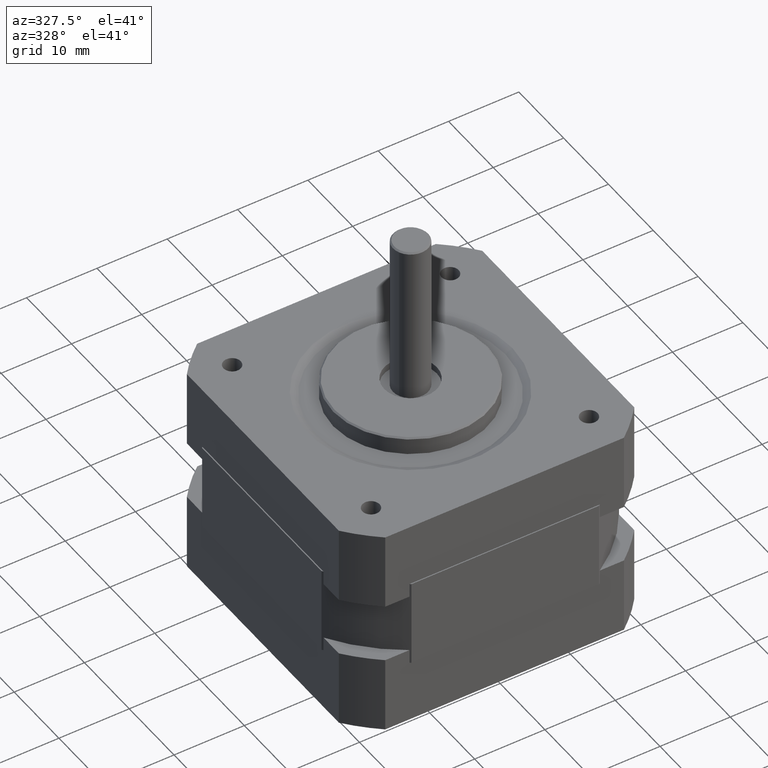
[diagram: clean part render]
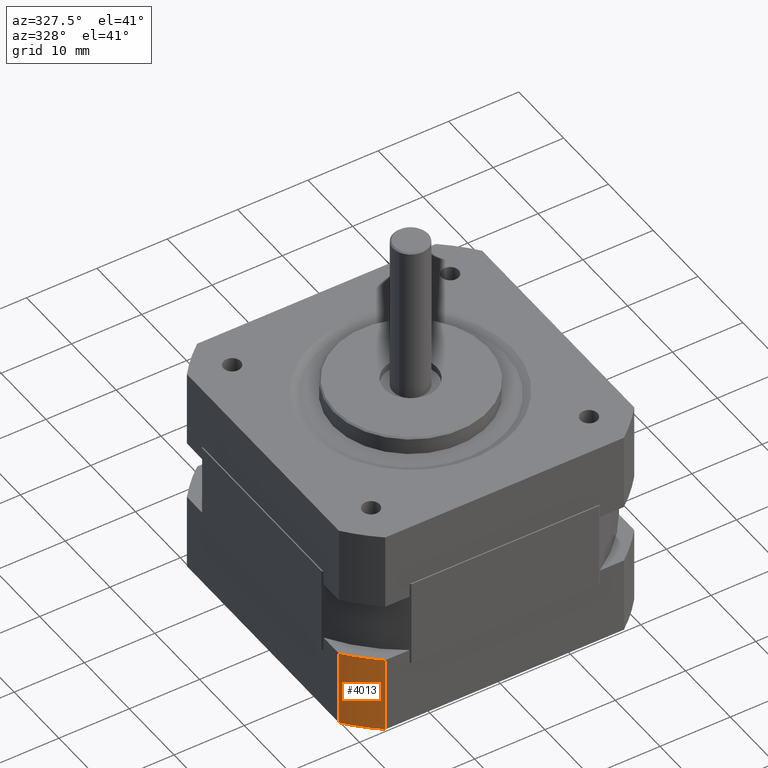
[diagram: same view with one face highlighted and labeled with its STEP entity id]
A machine part, auxiliary view. The second image highlights one B-rep face of the part: STEP entity #4013.
In plain terms, the highlighted cylindrical surface (partial cylindrical patch) has radius 27 mm, axis along (-0, -0, -1).
Its self-contained STEP definition (entity closure, byte-faithful):
#185=LINE('',#6242,#433);
#193=LINE('',#6301,#441);
#433=VECTOR('',#5006,11.);
#441=VECTOR('',#5082,11.);
#846=CYLINDRICAL_SURFACE('',#4350,27.);
#943=FACE_OUTER_BOUND('',#1242,.T.);
#1242=EDGE_LOOP('',(#2931,#2932,#2933,#2934));
#1502=CIRCLE('',#4310,27.);
#1505=CIRCLE('',#4317,27.);
#1772=VERTEX_POINT('',#6225);
#1773=VERTEX_POINT('',#6227);
#1777=VERTEX_POINT('',#6241);
#1779=VERTEX_POINT('',#6247);
#2193=EDGE_CURVE('',#1772,#1773,#1502,.T.);
#2200=EDGE_CURVE('',#1773,#1777,#185,.T.);
#2203=EDGE_CURVE('',#1779,#1777,#1505,.T.);
#2224=EDGE_CURVE('',#1772,#1779,#193,.T.);
#2931=ORIENTED_EDGE('',*,*,#2203,.T.);
#2932=ORIENTED_EDGE('',*,*,#2200,.F.);
#2933=ORIENTED_EDGE('',*,*,#2193,.F.);
#2934=ORIENTED_EDGE('',*,*,#2224,.T.);
#4013=ADVANCED_FACE('',(#943),#846,.T.);
#4310=AXIS2_PLACEMENT_3D('',#6228,#4990,#4991);
#4317=AXIS2_PLACEMENT_3D('',#6248,#5011,#5012);
#4350=AXIS2_PLACEMENT_3D('',#6302,#5083,#5084);
#4990=DIRECTION('center_axis',(9.034635156321E-16,9.20284061207292E-21,
1.));
#4991=DIRECTION('ref_axis',(0.628539361054709,0.777777777777778,-5.67869538616561E-16));
#5006=DIRECTION('',(-9.034635156321E-16,-9.20284061207292E-21,-1.));
#5011=DIRECTION('center_axis',(9.034635156321E-16,9.20284061207292E-21,
1.));
#5012=DIRECTION('ref_axis',(0.628539361054709,0.777777777777778,-5.67869538616561E-16));
#5082=DIRECTION('',(-9.034635156321E-16,-9.20284061207292E-21,-1.));
#5083=DIRECTION('center_axis',(-9.034635156321E-16,-9.20284061207292E-21,
-1.));
#5084=DIRECTION('ref_axis',(0.628539361054709,0.777777777777778,-5.67869538616561E-16));
#6225=CARTESIAN_POINT('',(-21.,-16.9705627484771,-13.5));
#6227=CARTESIAN_POINT('',(-16.9705627484771,-21.,-13.5));
#6228=CARTESIAN_POINT('Origin',(-1.41415715095995E-14,8.02526056812936E-15,
-13.5));
#6241=CARTESIAN_POINT('',(-16.9705627484771,-21.,-24.5));
#6242=CARTESIAN_POINT('',(-16.9705627484771,-21.,-13.5));
#6247=CARTESIAN_POINT('',(-21.,-16.9705627484771,-24.5));
#6248=CARTESIAN_POINT('Origin',(-2.40796701815525E-14,8.02515933688262E-15,
-24.5));
#6301=CARTESIAN_POINT('',(-21.,-16.9705627484771,-13.5));
#6302=CARTESIAN_POINT('Origin',(-1.41415715095995E-14,8.02526056812936E-15,
-13.5));